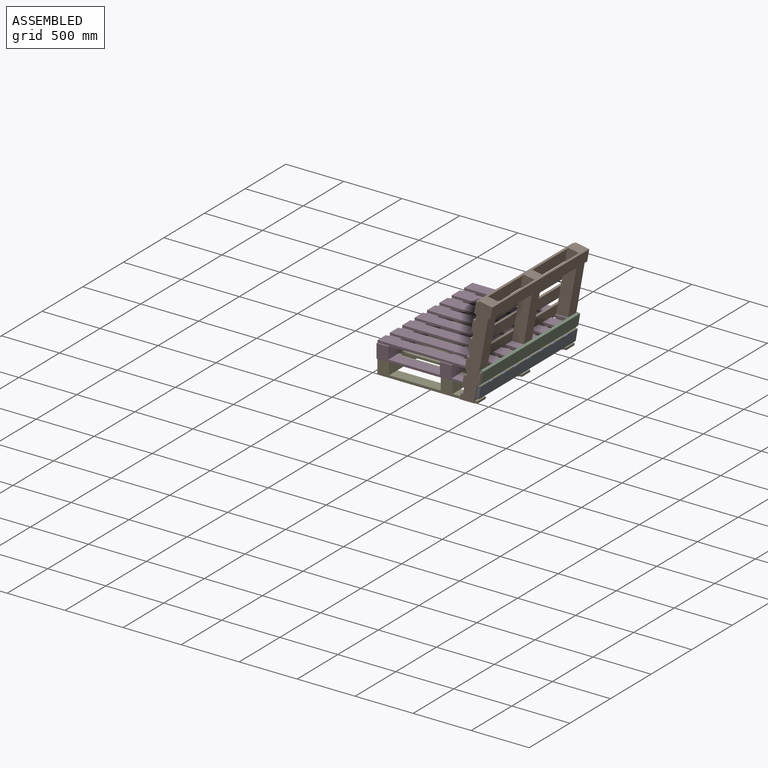
[diagram: assembled view]
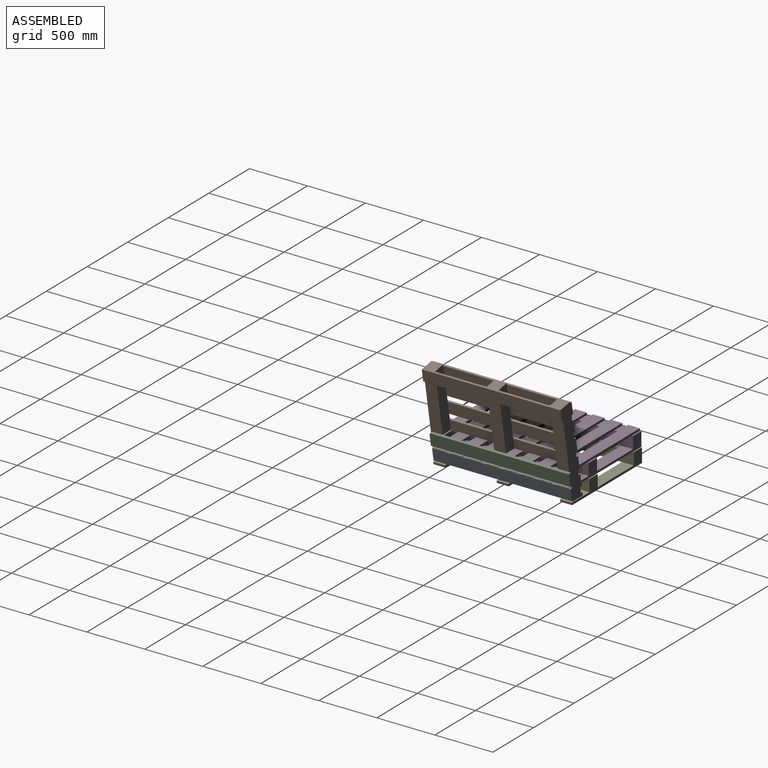
[diagram: assembled view, second angle]
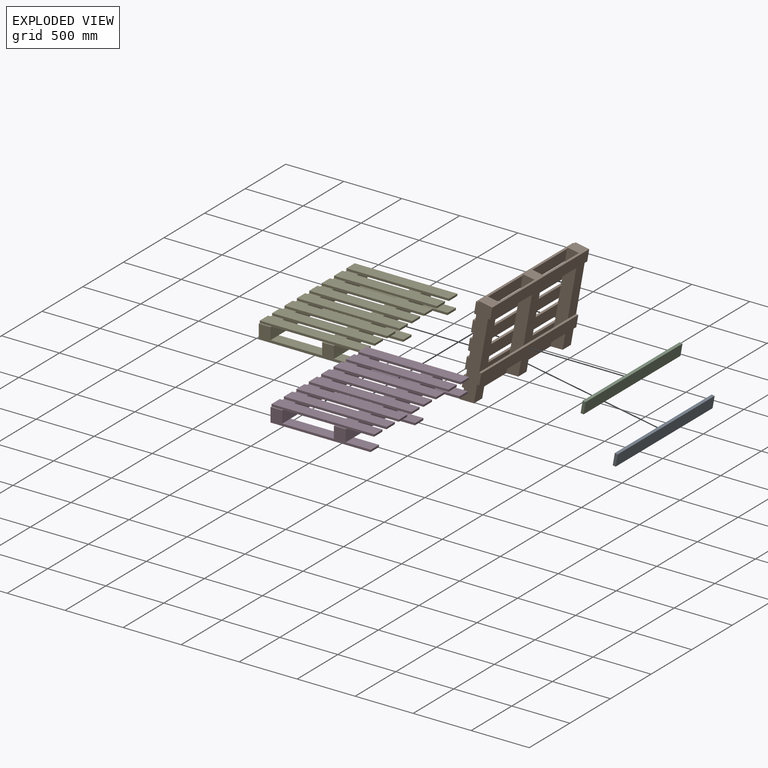
[diagram: exploded view]
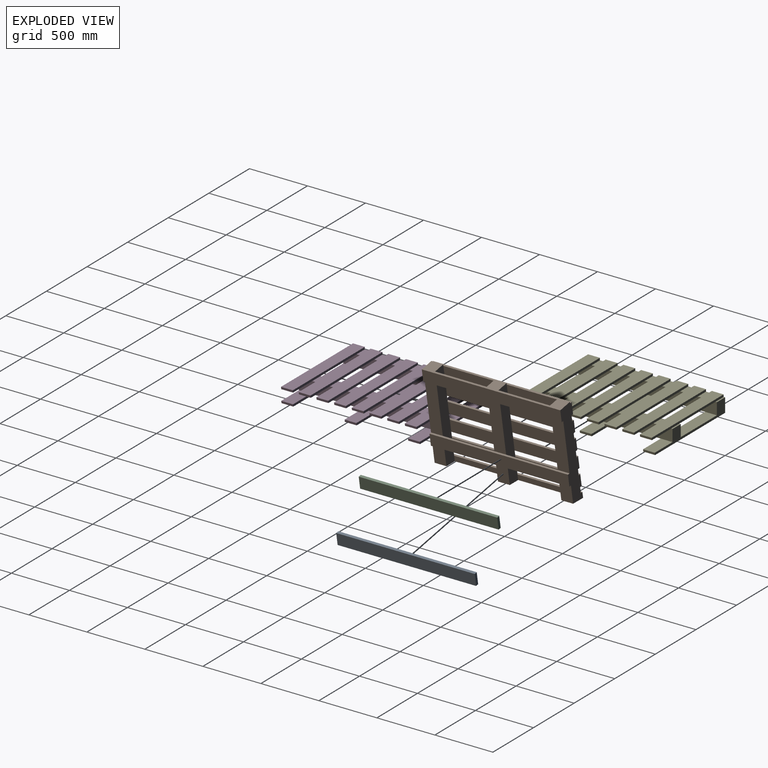
[diagram: exploded view, second angle]
ASSEMBLY  parts=5 mates=3
PART A: 6 faces, bbox 42.7x104.5x1193.8 mm
  f0: plane 1193.8x25.01mm, normal (-0.17,0.98,0), area 30322.5mm2, adj f1,f3,f4,f5
  f1: plane 104.47x42.66mm, normal (0,0,-1), area 2580.6mm2, adj f0,f2,f4,f5
  f2: plane 1193.8x25.01mm, normal (0.17,-0.98,0), area 30322.5mm2, adj f1,f3,f4,f5
  f3: plane 104.47x42.66mm, normal (0,0,1), area 2580.6mm2, adj f0,f2,f4,f5
  f4: plane 1193.8x100.06mm, normal (-0.98,-0.17,0), area 121290.1mm2, adj f0,f1,f2,f3
  f5: plane 1193.8x100.06mm, normal (0.98,0.17,0), area 121290.1mm2, adj f0,f1,f2,f3
PART B: 70 faces, bbox 1193.8x139.7x825.5 mm
  f0: plane 825.5x139.7mm, normal (-1,0,0), area 97060.7mm2, adj f4,f11,f12,f13,f16,f17,f18,f21
  f1: plane 444.5x47.33mm, normal (0,-1,0), area 21037.7mm2, adj f5,f8,f29,f69
  f2: plane 444.5x47.33mm, normal (0,-1,0), area 21037.7mm2, adj f3,f7,f29,f69
  f3: plane 822.03x101.6mm, normal (1,0,0), area 82577.7mm2, adj f2,f4,f10,f15,f20,f25,f31,f32
  f4: plane 155.82x101.6mm, normal (0,-1,0), area 15830.9mm2, adj f0,f3,f54,f69
  f5: plane 822.03x101.6mm, normal (-1,0,0), area 82577.7mm2, adj f1,f9,f14,f19,f24,f38,f44,f45
  f6: plane 155.82x101.6mm, normal (0,-1,0), area 15830.9mm2, adj f7,f8,f54,f69
  f7: plane 822.03x101.6mm, normal (-1,0,0), area 82577.7mm2, adj f2,f6,f10,f15,f20,f25,f39,f52
  f8: plane 822.03x101.6mm, normal (1,0,0), area 82577.7mm2, adj f1,f6,f9,f14,f19,f24,f38,f53
  f9: plane 444.5x101.6mm, normal (0,-1,0), area 45161.2mm2, adj f5,f8,f11,f12
  f10: plane 444.5x101.6mm, normal (0,-1,0), area 45161.2mm2, adj f3,f7,f11,f12
  f11: plane 1193.8x19.05mm, normal (0,0,1), area 22741.9mm2, adj f0,f9,f10,f13,f36,f42,f44,f62
  f12: plane 1193.8x19.05mm, normal (0,0,-1), area 22741.9mm2, adj f0,f9,f10,f13,f35,f42,f45,f61
  f13: plane 1193.8x101.6mm, normal (0,1,0), area 121290.1mm2, adj f0,f11,f12,f42
  f14: plane 444.5x101.6mm, normal (0,-1,0), area 45161.2mm2, adj f5,f8,f16,f17
  f15: plane 444.5x101.6mm, normal (0,-1,0), area 45161.2mm2, adj f3,f7,f16,f17
  f16: plane 1193.8x19.05mm, normal (0,0,1), area 22741.9mm2, adj f0,f14,f15,f18,f35,f42,f45,f61
  f17: plane 1193.8x19.05mm, normal (0,0,-1), area 22741.9mm2, adj f0,f14,f15,f18,f34,f42,f46,f60
  f18: plane 1193.8x101.6mm, normal (0,1,0), area 121290.1mm2, adj f0,f16,f17,f42
  f19: plane 444.5x101.6mm, normal (0,-1,0), area 45161.2mm2, adj f5,f8,f21,f22
  f20: plane 444.5x101.6mm, normal (0,-1,0), area 45161.2mm2, adj f3,f7,f21,f22
  f21: plane 1193.8x19.05mm, normal (0,0,1), area 22741.9mm2, adj f0,f19,f20,f23,f33,f42,f47,f59
  f22: plane 1193.8x19.05mm, normal (0,0,-1), area 22741.9mm2, adj f0,f19,f20,f23,f32,f42,f48,f58
  f23: plane 1193.8x101.6mm, normal (0,1,0), area 121290.1mm2, adj f0,f21,f22,f42
  f24: plane 444.5x101.6mm, normal (0,-1,0), area 45161.2mm2, adj f5,f8,f26,f27
  f25: plane 444.5x101.6mm, normal (0,-1,0), area 45161.2mm2, adj f3,f7,f26,f27
  f26: plane 1193.8x19.05mm, normal (0,0,1), area 22741.9mm2, adj f0,f24,f25,f28,f34,f42,f46,f60
  f27: plane 1193.8x19.05mm, normal (0,0,-1), area 22741.9mm2, adj f0,f24,f25,f28,f33,f42,f47,f59
  f28: plane 1193.8x101.6mm, normal (0,1,0), area 121290.1mm2, adj f0,f26,f27,f42
  f29: plane 1193.8x19.05mm, normal (0,0,-1), area 22741.9mm2, adj f0,f1,f2,f30,f36,f42,f44,f62
  f30: plane 1193.8x50.8mm, normal (0,1,0), area 60645mm2, adj f0,f29,f42,f69
  f31: plane 101.6x12.7mm, normal (0,1,0), area 1290.3mm2, adj f0,f3,f41,f68
  f32: plane 101.6x50.8mm, normal (0,1,0), area 5161.3mm2, adj f0,f3,f22,f40
  f33: plane 101.6x50.8mm, normal (0,1,0), area 5161.3mm2, adj f0,f3,f21,f27
  f34: plane 101.6x50.8mm, normal (0,1,0), area 5161.3mm2, adj f0,f3,f17,f26
  f35: plane 101.6x50.8mm, normal (0,1,0), area 5161.3mm2, adj f0,f3,f12,f16
  f36: plane 101.6x50.8mm, normal (0,1,0), area 5161.3mm2, adj f0,f3,f11,f29
  f37: plane 444.5x101.6mm, normal (0,-1,0), area 45161.2mm2, adj f0,f3,f56,f66
  f38: plane 444.5x101.6mm, normal (0,-1,0), area 45161.2mm2, adj f5,f8,f40,f41
  f39: plane 444.5x101.6mm, normal (0,-1,0), area 45161.2mm2, adj f3,f7,f40,f41
  f40: plane 1193.8x19.05mm, normal (0,0,1), area 22741.9mm2, adj f0,f32,f38,f39,f42,f43,f48,f58
  f41: plane 1193.8x19.05mm, normal (0,0,-1), area 22741.9mm2, adj f0,f31,f38,f39,f42,f43,f49,f57
  f42: plane 825.5x139.7mm, normal (1,0,0), area 97060.7mm2, adj f11,f12,f13,f16,f17,f18,f21,f22
  f43: plane 1193.8x101.6mm, normal (0,1,0), area 121290.1mm2, adj f0,f40,f41,f42
  f44: plane 101.6x50.8mm, normal (0,1,0), area 5161.3mm2, adj f5,f11,f29,f42
  f45: plane 101.6x50.8mm, normal (0,1,0), area 5161.3mm2, adj f5,f12,f16,f42
  f46: plane 101.6x50.8mm, normal (0,1,0), area 5161.3mm2, adj f5,f17,f26,f42
  f47: plane 101.6x50.8mm, normal (0,1,0), area 5161.3mm2, adj f5,f21,f27,f42
  f48: plane 101.6x50.8mm, normal (0,1,0), area 5161.3mm2, adj f5,f22,f40,f42
  f49: plane 101.6x12.7mm, normal (0,1,0), area 1290.3mm2, adj f5,f41,f42,f68
  f50: plane 155.82x101.6mm, normal (0,-1,0), area 15830.9mm2, adj f5,f42,f54,f69
  f51: plane 444.5x101.6mm, normal (0,-1,0), area 45161.2mm2, adj f5,f42,f56,f66
  f52: plane 444.5x101.6mm, normal (0,1,0), area 45161.2mm2, adj f3,f7,f54,f56
  f53: plane 444.5x101.6mm, normal (0,1,0), area 45161.2mm2, adj f5,f8,f54,f56
  f54: plane 1193.8x19.05mm, normal (0,0,1), area 22741.9mm2, adj f0,f4,f6,f42,f50,f52,f53,f55
  f55: plane 1193.8x101.6mm, normal (0,-1,0), area 121290.1mm2, adj f0,f42,f54,f56
  f56: plane 1193.8x19.05mm, normal (0,0,-1), area 22741.9mm2, adj f0,f37,f42,f51,f52,f53,f55,f63
  f57: plane 101.6x12.7mm, normal (0,1,0), area 1290.3mm2, adj f7,f8,f41,f68
  f58: plane 101.6x50.8mm, normal (0,1,0), area 5161.3mm2, adj f7,f8,f22,f40
  f59: plane 101.6x50.8mm, normal (0,1,0), area 5161.3mm2, adj f7,f8,f21,f27
  f60: plane 101.6x50.8mm, normal (0,1,0), area 5161.3mm2, adj f7,f8,f17,f26
  f61: plane 101.6x50.8mm, normal (0,1,0), area 5161.3mm2, adj f7,f8,f12,f16
  f62: plane 101.6x50.8mm, normal (0,1,0), area 5161.3mm2, adj f7,f8,f11,f29
  f63: plane 444.5x101.6mm, normal (0,-1,0), area 45161.2mm2, adj f7,f8,f56,f66
  f64: plane 444.5x101.6mm, normal (0,1,0), area 45161.2mm2, adj f3,f7,f66,f68
  f65: plane 444.5x101.6mm, normal (0,1,0), area 45161.2mm2, adj f5,f8,f66,f68
  f66: plane 1193.8x19.05mm, normal (0,0,1), area 22741.9mm2, adj f0,f37,f42,f51,f63,f64,f65,f67
  f67: plane 1193.8x101.6mm, normal (0,-1,0), area 121290.1mm2, adj f0,f42,f66,f68
  f68: plane 1193.8x120.65mm, normal (0,0,-1), area 53709.6mm2, adj f0,f3,f5,f7,f8,f31,f42,f49
  f69: plane 1193.8x120.65mm, normal (0,-0.18,0.98), area 54593.9mm2, adj f0,f1,f2,f3,f4,f5,f6,f7
PART C: same geometry as A
PART D: 92 faces, bbox 886.6x139.7x1193.8 mm
  f0: plane 865.35x120.65mm, normal (0,0,-1), area 37098mm2, adj f40,f50,f51,f60,f61,f62,f77,f78
  f1: plane 444.5x101.6mm, normal (0,-1,0), area 45161.2mm2, adj f3,f4,f51,f62
  f2: plane 235.57x101.6mm, normal (0,-1,0), area 23933.4mm2, adj f3,f4,f60,f91
  f3: plane 886.62x19.05mm, normal (0,0,1), area 16858.2mm2, adj f1,f2,f5,f40,f45,f67,f91
  f4: plane 886.62x19.05mm, normal (0,0,-1), area 16858.2mm2, adj f1,f2,f5,f40,f46,f66,f91
  f5: plane 886.62x101.6mm, normal (0,1,0), area 90081mm2, adj f3,f4,f40,f91
  f6: plane 444.5x101.6mm, normal (0,-1,0), area 45161.2mm2, adj f8,f9,f51,f62
  f7: plane 235.57x101.6mm, normal (0,-1,0), area 23933.4mm2, adj f8,f9,f60,f90
  f8: plane 886.62x19.05mm, normal (0,0,1), area 16858.2mm2, adj f6,f7,f10,f40,f46,f66,f90
  f9: plane 886.62x19.05mm, normal (0,0,-1), area 16858.2mm2, adj f6,f7,f10,f40,f47,f65,f90
  f10: plane 886.62x101.6mm, normal (0,1,0), area 90081mm2, adj f8,f9,f40,f90
  f11: plane 444.5x101.6mm, normal (0,-1,0), area 45161.2mm2, adj f13,f14,f51,f62
  f12: plane 235.57x101.6mm, normal (0,-1,0), area 23933.4mm2, adj f13,f14,f60,f89
  f13: plane 886.62x19.05mm, normal (0,0,1), area 16858.2mm2, adj f11,f12,f15,f40,f43,f69,f89
  f14: plane 886.62x19.05mm, normal (0,0,-1), area 16858.2mm2, adj f11,f12,f15,f40,f44,f68,f89
  f15: plane 886.62x101.6mm, normal (0,1,0), area 90081mm2, adj f13,f14,f40,f89
  f16: plane 444.5x101.6mm, normal (0,-1,0), area 45161.2mm2, adj f18,f19,f51,f62
  f17: plane 235.57x101.6mm, normal (0,-1,0), area 23933.4mm2, adj f18,f19,f60,f88
  f18: plane 886.62x19.05mm, normal (0,0,1), area 16858.2mm2, adj f16,f17,f20,f40,f42,f70,f88
  f19: plane 886.62x19.05mm, normal (0,0,-1), area 16858.2mm2, adj f16,f17,f20,f40,f43,f69,f88
  f20: plane 886.62x101.6mm, normal (0,1,0), area 90081mm2, adj f18,f19,f40,f88
  f21: plane 444.5x101.6mm, normal (0,-1,0), area 45161.2mm2, adj f23,f24,f51,f62
  f22: plane 235.57x101.6mm, normal (0,-1,0), area 23933.4mm2, adj f23,f24,f60,f87
  f23: plane 886.62x19.05mm, normal (0,0,1), area 16858.2mm2, adj f21,f22,f25,f40,f48,f64,f87
  f24: plane 886.62x19.05mm, normal (0,0,-1), area 16858.2mm2, adj f21,f22,f25,f40,f49,f63,f87
  f25: plane 886.62x101.6mm, normal (0,1,0), area 90081mm2, adj f23,f24,f40,f87
  f26: plane 444.5x101.6mm, normal (0,-1,0), area 45161.2mm2, adj f28,f29,f51,f62
  f27: plane 235.57x101.6mm, normal (0,-1,0), area 23933.4mm2, adj f28,f29,f60,f86
  f28: plane 886.62x19.05mm, normal (0,0,1), area 16858.2mm2, adj f26,f27,f30,f40,f47,f65,f86
  f29: plane 886.62x19.05mm, normal (0,0,-1), area 16858.2mm2, adj f26,f27,f30,f40,f48,f64,f86
  f30: plane 886.62x101.6mm, normal (0,1,0), area 90081mm2, adj f28,f29,f40,f86
  f31: plane 444.5x101.6mm, normal (0,-1,0), area 45161.2mm2, adj f33,f34,f51,f62
  f32: plane 235.57x101.6mm, normal (0,-1,0), area 23933.4mm2, adj f33,f34,f60,f85
  f33: plane 886.62x19.05mm, normal (0,0,1), area 16858.2mm2, adj f31,f32,f35,f40,f44,f68,f85
  f34: plane 886.62x19.05mm, normal (0,0,-1), area 16858.2mm2, adj f31,f32,f35,f40,f45,f67,f85
  f35: plane 886.62x101.6mm, normal (0,1,0), area 90081mm2, adj f33,f34,f40,f85
  f36: plane 444.5x101.6mm, normal (0,-1,0), area 45161.2mm2, adj f38,f39,f51,f62
  f37: plane 235.57x101.6mm, normal (0,-1,0), area 23933.4mm2, adj f38,f39,f60,f84
  f38: plane 886.62x19.05mm, normal (0,0,1), area 16858.2mm2, adj f36,f37,f40,f41,f49,f63,f84
  f39: plane 886.62x19.05mm, normal (0,0,-1), area 16858.2mm2, adj f36,f37,f40,f41,f50,f61,f84
  f40: plane 1193.8x139.7mm, normal (1,0,0), area 142580.4mm2, adj f0,f3,f4,f5,f8,f9,f10,f13
  f41: plane 886.62x101.6mm, normal (0,1,0), area 90081mm2, adj f38,f39,f40,f84
  f42: plane 101.6x12.7mm, normal (0,1,0), area 1290.3mm2, adj f18,f40,f51,f74
  f43: plane 101.6x50.8mm, normal (0,1,0), area 5161.3mm2, adj f13,f19,f40,f51
  f44: plane 101.6x50.8mm, normal (0,1,0), area 5161.3mm2, adj f14,f33,f40,f51
  f45: plane 101.6x50.8mm, normal (0,1,0), area 5161.3mm2, adj f3,f34,f40,f51
  f46: plane 101.6x50.8mm, normal (0,1,0), area 5161.3mm2, adj f4,f8,f40,f51
  f47: plane 101.6x50.8mm, normal (0,1,0), area 5161.3mm2, adj f9,f28,f40,f51
  f48: plane 101.6x50.8mm, normal (0,1,0), area 5161.3mm2, adj f23,f29,f40,f51
  f49: plane 101.6x50.8mm, normal (0,1,0), area 5161.3mm2, adj f24,f38,f40,f51
  f50: plane 101.6x12.7mm, normal (0,1,0), area 1290.3mm2, adj f0,f39,f40,f51
  f51: plane 1193.8x101.6mm, normal (-1,0,0), area 121290.1mm2, adj f0,f1,f6,f11,f16,f21,f26,f31
  f52: plane 444.5x101.6mm, normal (0,-1,0), area 45161.2mm2, adj f40,f51,f56,f75
  f53: plane 444.5x101.6mm, normal (0,-1,0), area 45161.2mm2, adj f40,f51,f58,f79
  f54: plane 217.65x101.6mm, normal (0,1,0), area 22113.3mm2, adj f56,f58,f60,f83
  f55: plane 444.5x101.6mm, normal (0,1,0), area 45161.2mm2, adj f51,f56,f58,f62
  f56: plane 865.35x19.05mm, normal (0,0,1), area 16452.9mm2, adj f40,f52,f54,f55,f57,f59,f83
  f57: plane 861.99x101.6mm, normal (0,-1,0), area 87578.3mm2, adj f40,f56,f58,f83
  f58: plane 865.35x19.05mm, normal (0,0,-1), area 16452.9mm2, adj f40,f53,f54,f55,f57,f71,f83
  f59: plane 444.5x101.6mm, normal (0,-1,0), area 45161.2mm2, adj f56,f60,f62,f75
  f60: plane 1193.8x101.6mm, normal (-1,0,0), area 121290.1mm2, adj f0,f2,f7,f12,f17,f22,f27,f32
  f61: plane 101.6x12.7mm, normal (0,1,0), area 1290.3mm2, adj f0,f39,f60,f62
  f62: plane 1193.8x101.6mm, normal (1,0,0), area 121290.1mm2, adj f0,f1,f6,f11,f16,f21,f26,f31
  f63: plane 101.6x50.8mm, normal (0,1,0), area 5161.3mm2, adj f24,f38,f60,f62
  f64: plane 101.6x50.8mm, normal (0,1,0), area 5161.3mm2, adj f23,f29,f60,f62
  f65: plane 101.6x50.8mm, normal (0,1,0), area 5161.3mm2, adj f9,f28,f60,f62
  f66: plane 101.6x50.8mm, normal (0,1,0), area 5161.3mm2, adj f4,f8,f60,f62
  f67: plane 101.6x50.8mm, normal (0,1,0), area 5161.3mm2, adj f3,f34,f60,f62
  f68: plane 101.6x50.8mm, normal (0,1,0), area 5161.3mm2, adj f14,f33,f60,f62
  f69: plane 101.6x50.8mm, normal (0,1,0), area 5161.3mm2, adj f13,f19,f60,f62
  f70: plane 101.6x12.7mm, normal (0,1,0), area 1290.3mm2, adj f18,f60,f62,f74
  f71: plane 444.5x101.6mm, normal (0,-1,0), area 45161.2mm2, adj f58,f60,f62,f79
  f72: plane 217.65x101.6mm, normal (0,1,0), area 22113.3mm2, adj f60,f74,f75,f82
  f73: plane 444.5x101.6mm, normal (0,1,0), area 45161.2mm2, adj f51,f62,f74,f75
  f74: plane 865.35x120.65mm, normal (0,0,1), area 37098mm2, adj f40,f42,f51,f60,f62,f70,f72,f73
  f75: plane 865.35x19.05mm, normal (0,0,-1), area 16452.9mm2, adj f40,f52,f59,f72,f73,f76,f82
  f76: plane 861.99x101.6mm, normal (0,-1,0), area 87578.3mm2, adj f40,f74,f75,f82
  f77: plane 217.65x101.6mm, normal (0,1,0), area 22113.3mm2, adj f0,f60,f79,f81
  f78: plane 444.5x101.6mm, normal (0,1,0), area 45161.2mm2, adj f0,f51,f62,f79
  f79: plane 865.35x19.05mm, normal (0,0,1), area 16452.9mm2, adj f40,f53,f71,f77,f78,f80,f81
  f80: plane 861.99x101.6mm, normal (0,-1,0), area 87578.3mm2, adj f0,f40,f79,f81
  f81: plane 101.6x19.05mm, normal (-0.98,-0.17,0), area 1965.3mm2, adj f0,f77,f79,f80
  f82: plane 101.6x19.05mm, normal (-0.98,-0.17,0), area 1965.3mm2, adj f72,f74,f75,f76
  f83: plane 101.6x19.05mm, normal (-0.98,-0.17,0), area 1965.3mm2, adj f54,f56,f57,f58
  f84: plane 101.6x19.05mm, normal (-0.98,-0.17,0), area 1965.3mm2, adj f37,f38,f39,f41
  f85: plane 101.6x19.05mm, normal (-0.98,-0.17,0), area 1965.3mm2, adj f32,f33,f34,f35
  f86: plane 101.6x19.05mm, normal (-0.98,-0.17,0), area 1965.3mm2, adj f27,f28,f29,f30
  f87: plane 101.6x19.05mm, normal (-0.98,-0.17,0), area 1965.3mm2, adj f22,f23,f24,f25
  f88: plane 101.6x19.05mm, normal (-0.98,-0.17,0), area 1965.3mm2, adj f17,f18,f19,f20
  f89: plane 101.6x19.05mm, normal (-0.98,-0.17,0), area 1965.3mm2, adj f12,f13,f14,f15
  f90: plane 101.6x19.05mm, normal (-0.98,-0.17,0), area 1965.3mm2, adj f7,f8,f9,f10
  f91: plane 101.6x19.05mm, normal (-0.98,-0.17,0), area 1965.3mm2, adj f2,f3,f4,f5
PART E: same geometry as D
PLACE A rot(axis=(0,-0.71,-0.71),180deg) t=(-177.32,246.38,-596.82)mm
PLACE B rot(axis=(0.71,-0.71,-0.06),172.9deg) t=(182.1,233.68,-171.54)mm
PLACE C rot(axis=(-1,0,0),90deg) t=(510.55,246.38,151.23)mm
PLACE D rot(axis=(0,-0.71,-0.71),180deg) t=(-115.77,233.68,-247.72)mm
PLACE E rot(axis=(0,-0.71,-0.71),180deg) t=(-113.62,241.1,-371.66)mm
MATE fastened C.f5 <-> A.f4  axis (0.98,0,-0.17) through (190.15,246.38,-162.46)mm
MATE planar D.f0 <-> B.f42  axis (0,-1,0) through (-340.93,-363.22,-204.62)mm
MATE fastened C.f1 <-> D.f39  axis (0,1,0) through (173.96,-350.52,-108.02)mm
